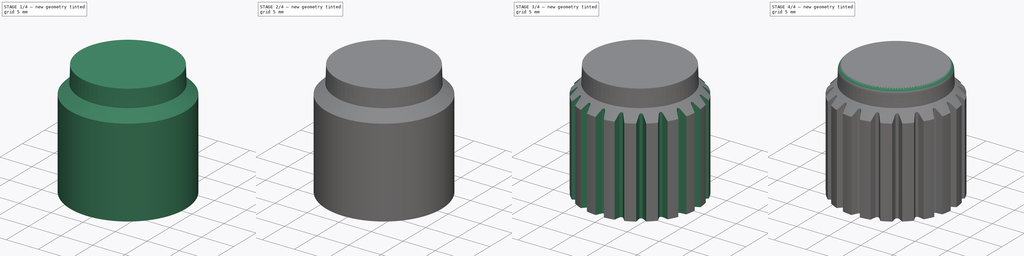
[diagram: build sequence overview — one tinted view per stage of 4, left to right]
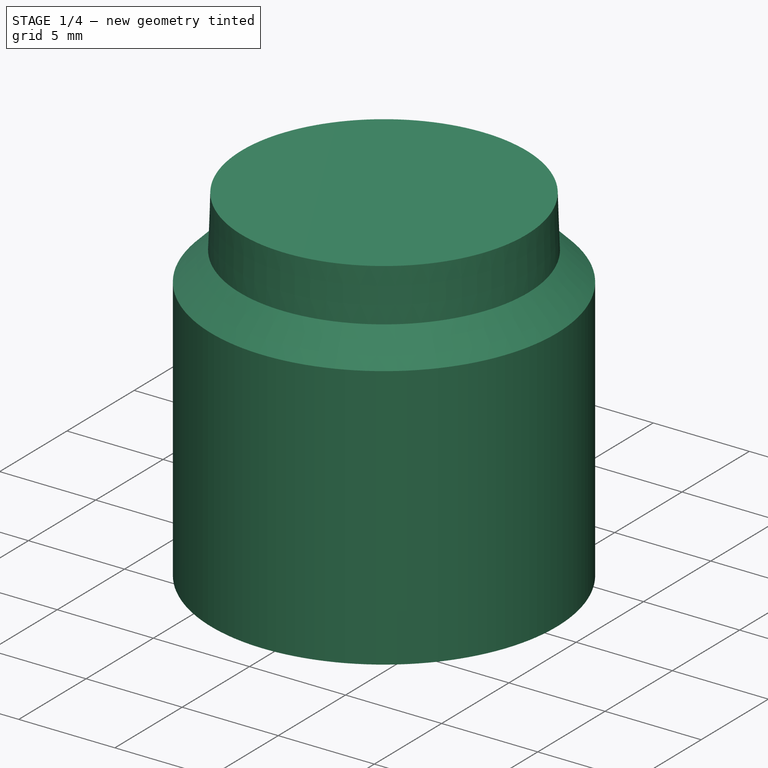
[diagram: stage 1 of 4 — iso view after this stage's code; geometry added in this stage tinted green]
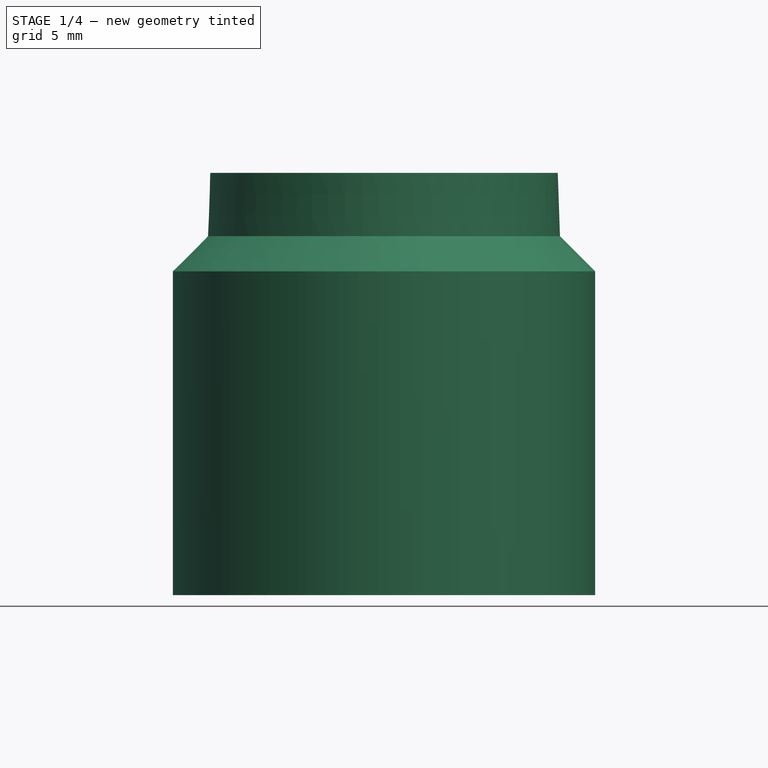
[diagram: stage 1 of 4 — front view after this stage's code; geometry added in this stage tinted green]
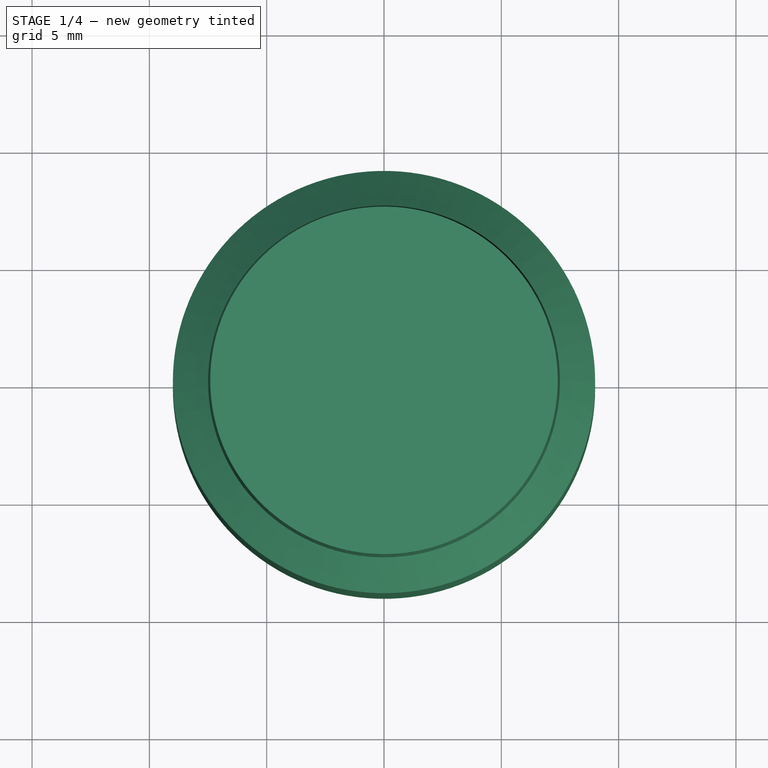
[diagram: stage 1 of 4 — top view after this stage's code; geometry added in this stage tinted green]
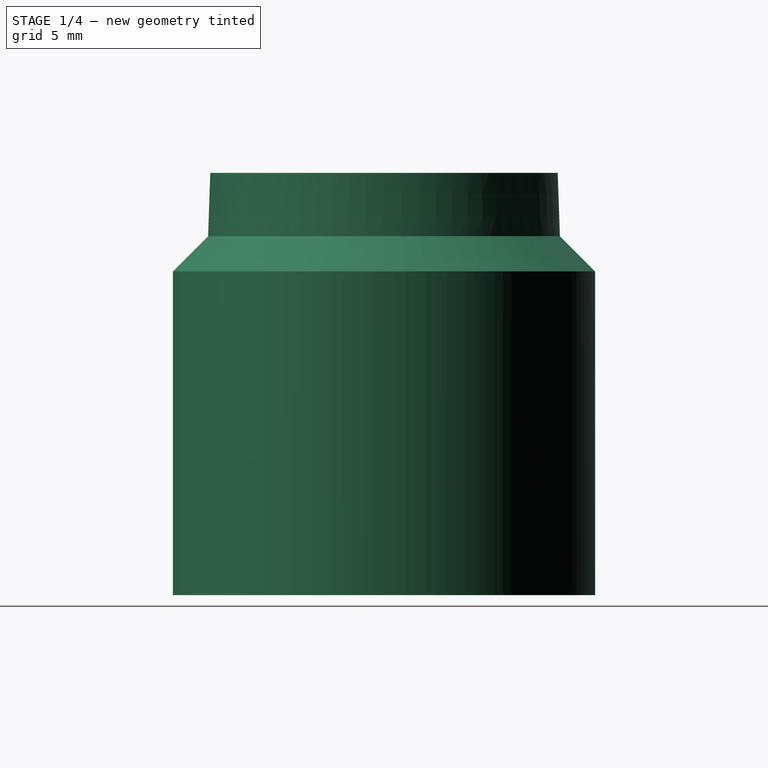
[diagram: stage 1 of 4 — right view after this stage's code; geometry added in this stage tinted green]
FCSTD DOCUMENT  (FreeCAD 2022.709R28846 (Git))
Label: knob_brute
License: All rights reserved
LicenseURL: http://en.wikipedia.org/wiki/All_rights_reserved
objects: Sketcher::SketchObject×6, PartDesign::Pocket×4, PartDesign::Fillet×2, PartDesign::Chamfer×2, PartDesign::Revolution×1, PartDesign::Pad×1, PartDesign::Mirrored×1, PartDesign::PolarPattern×1, PartDesign::Body×1
note: 43 computed .brp shape members not serialized (recipe doc carries the construction recipe); baked Part::Feature solids carry a one-line shape summary decoded from their .brp

FEATURE [Sketcher::SketchObject] Sketch  label="Master Profile Sketch"
  ArcFitTolerance = 0
  AttachmentSupport = -> [XZ_Plane]
  FullyConstrained = true
  MapMode = 5
  Placement = pos=(0,0,0) rot=(1,0,0;1.5708rad)
  Support = -> [XZ_Plane]
  TreeRank = 0
  sketch-geometry (9):
    g0: LineSegment StartX=0 StartY=0 StartZ=0 EndX=0 EndY=18 EndZ=0
    g1: LineSegment StartX=0 StartY=18 StartZ=0 EndX=7.40571 EndY=18 EndZ=0
    g2: LineSegment StartX=7.40571 StartY=18 StartZ=0 EndX=7.5 EndY=15.3 EndZ=0
    g3: LineSegment StartX=7.5 StartY=15.3 StartZ=0 EndX=9 EndY=13.8 EndZ=0
    g4: LineSegment StartX=9 StartY=13.8 StartZ=0 EndX=9 EndY=0 EndZ=0
    g5: LineSegment StartX=9 StartY=0 StartZ=0 EndX=0 EndY=0 EndZ=0
    g6: LineSegment [constr] StartX=7.5 StartY=15.3 StartZ=0 EndX=9 EndY=15.3 EndZ=0
    g7: LineSegment [constr] StartX=9 StartY=13.8 StartZ=0 EndX=9 EndY=15.3 EndZ=0
    g8: LineSegment [constr] StartX=7.5 StartY=15.3 StartZ=0 EndX=7.5 EndY=18 EndZ=0
  constraints (25):
    c: Coincident(g-1,g0)
    c: PointOnObject(g0,g-2)
    c: Coincident(g0,g1)
    c: Horizontal(g1)
    c: Coincident(g1,g2)
    c: Coincident(g2,g3)
    c: Coincident(g3,g4)
    c: PointOnObject(g4,g-1)
    c: Vertical(g4)
    c: Coincident(g4,g5)
    c: Coincident(g5,g0)
    c: DistanceY(g0,g0) = 18
    c: DistanceX(g5,g5) = 9
    c: DistanceY(g2,g2) = 2.7
    c: DistanceX(g3,g3) = 1.5
    c: Coincident(g6,g2)
    c: Horizontal(g6)
    c: Coincident(g7,g3)
    c: Coincident(g7,g6)
    c: Vertical(g7)
    c: Angle(g7,g3) = 0.785398
    c: Coincident(g8,g2)
    c: Vertical(g8)
    c: Horizontal(g1,g8)
    c: Angle(g8,g2) = 0.0349066
FEATURE [PartDesign::Revolution] Revolution
  Angle = 360
  Axis = (0,-2e-16,1)
  Base = (0,0,0)
  ClaimChildren = false
  Fit = 0
  FitJoin = 0
  InnerFit = 0
  InnerFitJoin = 0
  NewSolid = false
  Placement = pos=(0,0,0) rot=(1,0,0;1.5708rad)
  Profile = -> Sketch
  ReferenceAxis = -> Sketch [V_Axis]
  Reversed = true
  Suppress = false
  TreeRank = 0
  _ProfileBasedVersion = 0
FEATURE [Sketcher::SketchObject] Sketch002
  ArcFitTolerance = 0
  AttachmentSupport = -> [XY_Plane]
  ExternalGeometry = -> [Revolution]
  FullyConstrained = true
  MapMode = 5
  Support = -> [XY_Plane]
  TreeRank = 0
  sketch-geometry (3):
    g0: Circle CenterX=0 CenterY=0 CenterZ=0 NormalX=0 NormalY=0 NormalZ=1 AngleXU=0 Radius=6
    g1: GeomPoint [constr] X=0 Y=-9 Z=0
    g2: GeomPoint [constr] X=0 Y=-6 Z=0
  constraints (6):
    c: Coincident(g0,g-1)
    c: PointOnObject(g1,g-3)
    c: Vertical(g1,g-1)
    c: PointOnObject(g2,g0)
    c: Vertical(g2,g-1)
    c: DistanceY(g1,g2) = 3
FEATURE [PartDesign::Pocket] Pocket
  BaseFeature = -> Revolution
  ClaimChildren = false
  Fit = 0
  FitJoin = 0
  InnerFit = 0
  InnerFitJoin = 0
  InnerTaperAngle = 0
  InnerTaperAngleRev = 0
  Length = 16
  Length2 = 5
  NewSolid = false
  Placement = pos=(0,0,0) rot=(1,0,0;1.5708rad)
  Profile = -> Sketch002
  Reversed = true
  Suppress = false
  TreeRank = 0
  Type = 0
  _ProfileBasedVersion = 0
FEATURE [Sketcher::SketchObject] Sketch001
  ArcFitTolerance = 0
  AttachmentOffset = pos=(0,0,16) rot=(0,0,1;0rad)
  AttachmentSupport = -> [XY_Plane]
  ExternalGeometry = -> [Pocket]
  FullyConstrained = true
  MapMode = 5
  Placement = pos=(0,0,16) rot=(0,0,1;0rad)
  Support = -> [XY_Plane]
  TreeRank = 0
  expr: AttachmentOffset.Base.z = Pocket.Length
  sketch-geometry (15):
    g0: ArcOfCircle CenterX=0 CenterY=4e-16 CenterZ=0 NormalX=0 NormalY=0 NormalZ=1 AngleXU=0 Radius=3.15 StartAngle=1.11024 EndAngle=3.14159
    g1: LineSegment [constr] StartX=1.4 StartY=2.82179 StartZ=0 EndX=1.4 EndY=0 EndZ=0
    g2: ArcOfCircle CenterX=4.4 CenterY=4e-16 CenterZ=0 NormalX=0 NormalY=0 NormalZ=1 AngleXU=0 Radius=3 StartAngle=2.56083 EndAngle=3.14159
    g3: ArcOfCircle CenterX=1.26875 CenterY=2.05491 CenterZ=0 NormalX=0 NormalY=0 NormalZ=1 AngleXU=0 Radius=0.745313 StartAngle=5.70242 EndAngle=7.39343
    g4: LineSegment StartX=1.4 StartY=2.82179 StartZ=0 EndX=1.6 EndY=2.72256 EndZ=0
    g5: ArcOfCircle CenterX=4.4 CenterY=4e-16 CenterZ=0 NormalX=0 NormalY=0 NormalZ=1 AngleXU=0 Radius=2.18 StartAngle=2.56083 EndAngle=3.14159
    g6: ArcOfCircle CenterX=1.26875 CenterY=2.05491 CenterZ=0 NormalX=0 NormalY=0 NormalZ=1 AngleXU=0 Radius=1.56531 StartAngle=5.70242 EndAngle=7.39343
    g7: LineSegment StartX=1.4 StartY=4e-16 StartZ=0 EndX=2.22 EndY=4e-16 EndZ=0
    g8: LineSegment [constr] StartX=1.89186 StartY=1.64598 StartZ=0 EndX=2.57742 EndY=1.19608 EndZ=0
    g9: LineSegment [constr] StartX=1.96444 StartY=3.45712 StartZ=0 EndX=1.6 EndY=2.72256 EndZ=0
    g10: Circle [constr] CenterX=0 CenterY=4e-16 CenterZ=0 NormalX=0 NormalY=0 NormalZ=1 AngleXU=0 Radius=3
    g11: GeomPoint [constr] X=-3 Y=4e-16 Z=0
    g12: ArcOfCircle CenterX=2.41444 CenterY=4.36413 CenterZ=0 NormalX=0 NormalY=0 NormalZ=1 AngleXU=0 Radius=1.0125 StartAngle=1.06546 EndAngle=4.25183
    g13: ArcOfCircle CenterX=0 CenterY=4e-16 CenterZ=0 NormalX=0 NormalY=0 NormalZ=1 AngleXU=0 Radius=6 StartAngle=1.06546 EndAngle=3.14159
    g14: LineSegment StartX=-3.15 StartY=4e-16 StartZ=0 EndX=-6 EndY=4e-16 EndZ=0
  constraints (38):
    c: Vertical(g1)
    c: Coincident(g0,g1)
    c: Diameter(g0) = 6.3
    c: Horizontal(g2,g0)
    c: Tangent(g3,g2) = 1.5708
    c: Tangent(g4,g0) = 1.5708
    c: Tangent(g4,g3) = 1.5708
    c: Radius(g2) = 3
    c: Coincident(g6,g5)
    c: PointOnObject(g7,g2)
    c: Horizontal(g7)
    c: Horizontal(g7,g2)
    c: Coincident(g5,g2)
    c: Coincident(g5,g7)
    c: Coincident(g8,g2)
    c: Coincident(g8,g5)
    c: PointOnObject(g2,g8)
    c: Coincident(g3,g6)
    c: Coincident(g9,g6)
    c: Coincident(g9,g3)
    c: PointOnObject(g3,g9)
    c: DistanceX(g7,g7) = 0.82
    c: DistanceX(g0,g3) = 0.2
    c: Coincident(g10,g0)
    c: PointOnObject(g11,g10)
    c: Horizontal(g11,g0)
    c: Diameter(g10) = 6
    c: DistanceX(g11,g0) = 4.4
    c: Tangent(g12,g-3) = -1.5708
    c: Tangent(g12,g6) = 1.5708
    c: Tangent(g1,g2) = -1.5708
    c: Coincident(g13,g12)
    c: Coincident(g0,g13)
    c: Horizontal(g0,g0)
    c: Coincident(g14,g0)
    c: Coincident(g13,g14)
    c: Coincident(g0,g-3)
    c: Horizontal(g14)
FEATURE [PartDesign::Pad] Pad
  BaseFeature = -> Pocket
  ClaimChildren = false
  Direction = (0,0,1)
  Fit = 0
  FitJoin = 0
  InnerFit = 0
  InnerFitJoin = 0
  InnerTaperAngle = 0
  InnerTaperAngleRev = 0
  Length = 13
  Length2 = 10
  NewSolid = false
  Placement = pos=(0,0,0) rot=(1,0,0;1.5708rad)
  Profile = -> Sketch001
  Reversed = true
  Suppress = false
  TreeRank = 0
  Type = 0
  _ProfileBasedVersion = 0
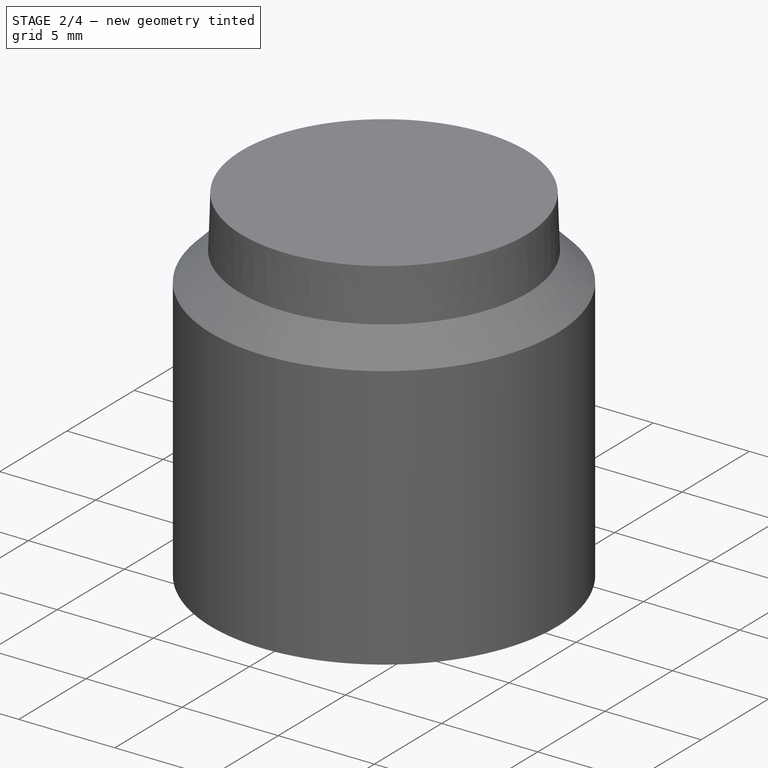
[diagram: stage 2 of 4 — iso view after this stage's code; geometry added in this stage tinted green]
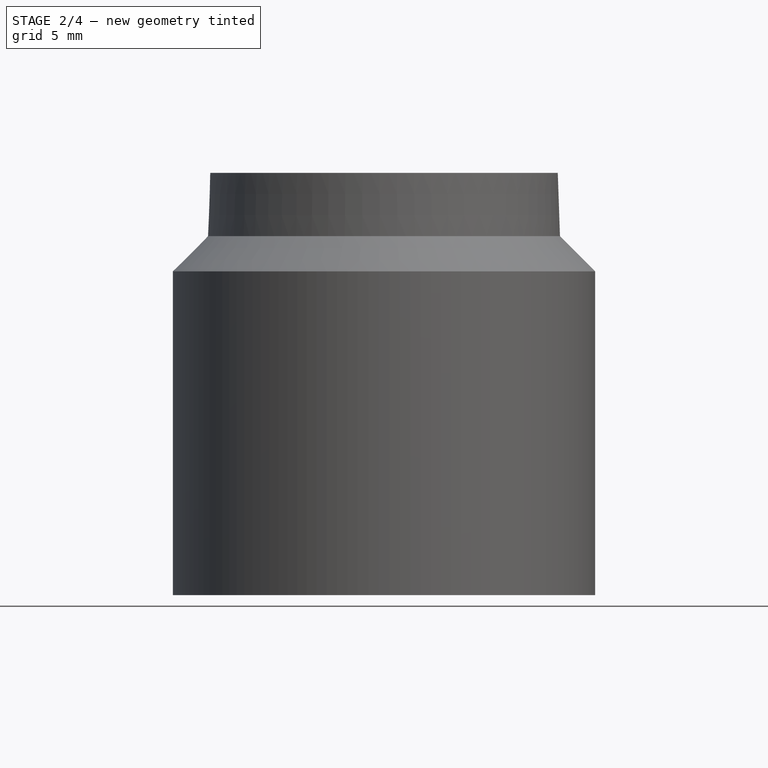
[diagram: stage 2 of 4 — front view after this stage's code; geometry added in this stage tinted green]
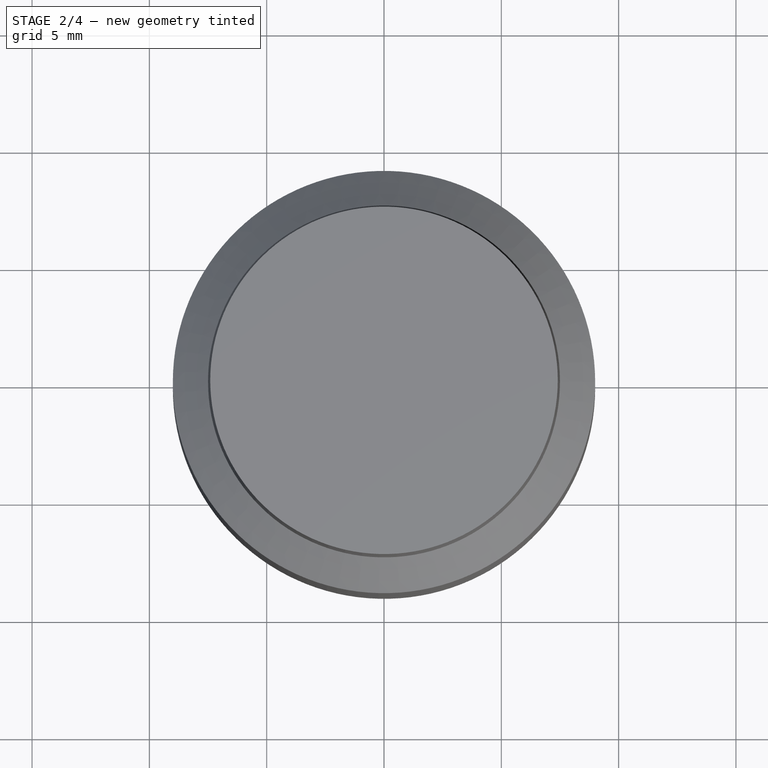
[diagram: stage 2 of 4 — top view after this stage's code; geometry added in this stage tinted green]
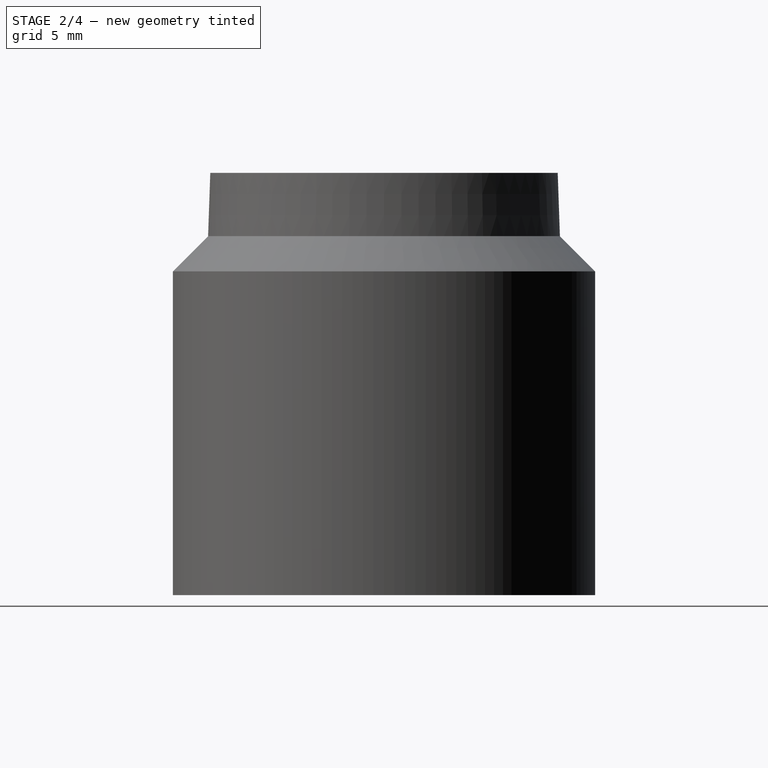
[diagram: stage 2 of 4 — right view after this stage's code; geometry added in this stage tinted green]
FEATURE [PartDesign::Mirrored] Mirrored
  BaseFeature = -> Pad
  CopyShape = true
  MirrorPlane = -> Sketch001 [H_Axis]
  NewSolid = false
  OriginalSubs = -> [Pad]
  Originals = -> [Pad]
  ParallelTransform = true
  Placement = pos=(0,0,0) rot=(1,0,0;1.5708rad)
  SubTransform = true
  Suppress = false
  TreeRank = 0
FEATURE [Sketcher::SketchObject] Sketch003
  ArcFitTolerance = 0
  AttachmentOffset = pos=(0,0,16) rot=(0,0,1;0rad)
  AttachmentSupport = -> [XY_Plane]
  ExternalGeometry = -> [Mirrored]
  FullyConstrained = true
  MapMode = 5
  Placement = pos=(0,0,16) rot=(0,0,1;0rad)
  Support = -> [XY_Plane]
  TreeRank = 0
  expr: AttachmentOffset.Base.z = Pocket.Length
  sketch-geometry (8):
    g0: LineSegment StartX=3.15 StartY=3.45712 StartZ=0 EndX=3.15 EndY=-9e-16 EndZ=0
    g1: LineSegment [constr] StartX=3.15 StartY=-8e-16 StartZ=0 EndX=1.4 EndY=-8e-16 EndZ=0
    g2: LineSegment StartX=1.96444 StartY=3.45712 StartZ=0 EndX=3.15 EndY=3.45712 EndZ=0
    g3: LineSegment StartX=3.15 StartY=-3.45712 StartZ=0 EndX=3.15 EndY=-9e-16 EndZ=0
    g4: LineSegment StartX=1.4 StartY=2.82179 StartZ=0 EndX=1.4 EndY=-2.82179 EndZ=0
    g5: LineSegment StartX=1.96444 StartY=3.45712 StartZ=0 EndX=1.4 EndY=2.82179 EndZ=0
    g6: LineSegment StartX=3.15 StartY=-3.45712 StartZ=0 EndX=1.96444 EndY=-3.45712 EndZ=0
    g7: LineSegment StartX=1.96444 StartY=-3.45712 StartZ=0 EndX=1.4 EndY=-2.82179 EndZ=0
  constraints (21):
    c: Vertical(g0)
    c: Horizontal(g1)
    c: Coincident(g0,g1)
    c: Tangent(g0,g-3)
    c: Coincident(g2,g0)
    c: Horizontal(g2)
    c: Vertical(g3)
    c: Coincident(g0,g3)
    c: Equal(g3,g0)
    c: Vertical(g4)
    c: Symmetric(g4,g4,g1)
    c: Coincident(g1,g-4)
    c: Coincident(g-5,g2)
    c: Coincident(g5,g2)
    c: Coincident(g5,g4)
    c: PointOnObject(g-3,g5)
    c: Coincident(g3,g6)
    c: Coincident(g6,g7)
    c: Coincident(g7,g4)
    c: Vertical(g6,g2)
    c: Horizontal(g6)
FEATURE [PartDesign::Pocket] Pocket001
  BaseFeature = -> Mirrored
  ClaimChildren = false
  Fit = 0
  FitJoin = 0
  InnerFit = 0
  InnerFitJoin = 0
  InnerTaperAngle = 0
  InnerTaperAngleRev = 0
  Length = 0.2
  Length2 = 5
  NewSolid = false
  Placement = pos=(0,0,0) rot=(1,0,0;1.5708rad)
  Profile = -> Sketch003
  Suppress = false
  TreeRank = 0
  Type = 0
  _ProfileBasedVersion = 0
FEATURE [Sketcher::SketchObject] Sketch004
  ArcFitTolerance = 0
  AttachmentOffset = pos=(0,0,3) rot=(0,0,1;0rad)
  AttachmentSupport = -> [XY_Plane]
  ExternalGeometry = -> [Mirrored]
  FullyConstrained = true
  MapMode = 5
  Placement = pos=(0,0,3) rot=(0,0,1;0rad)
  Support = -> [XY_Plane]
  TreeRank = 0
  expr: AttachmentOffset.Base.z = Pocket.Length - Pad.Length
  sketch-geometry (9):
    g0: LineSegment [constr] StartX=2.83406 StartY=-8e-16 StartZ=0 EndX=1.4 EndY=-8e-16 EndZ=0
    g1: LineSegment StartX=2.83406 StartY=-8e-16 StartZ=0 EndX=2.83406 EndY=3.45712 EndZ=0
    g2: LineSegment StartX=1.96444 StartY=3.45712 StartZ=0 EndX=1.4 EndY=2.82179 EndZ=0
    g3: LineSegment StartX=1.4 StartY=2.82179 StartZ=0 EndX=1.4 EndY=-9e-16 EndZ=0
    g4: LineSegment StartX=1.96444 StartY=3.45712 StartZ=0 EndX=2.83406 EndY=3.45712 EndZ=0
    g5: LineSegment StartX=1.4 StartY=-2.82179 StartZ=0 EndX=1.4 EndY=-9e-16 EndZ=0
    g6: LineSegment StartX=1.96444 StartY=-3.45712 StartZ=0 EndX=1.4 EndY=-2.82179 EndZ=0
    g7: LineSegment StartX=1.96444 StartY=-3.45712 StartZ=0 EndX=2.83406 EndY=-3.45712 EndZ=0
    g8: LineSegment StartX=2.83406 StartY=-8e-16 StartZ=0 EndX=2.83406 EndY=-3.45712 EndZ=0
  constraints (23):
    c: Horizontal(g0)
    c: Vertical(g1)
    c: Coincident(g0,g1)
    c: Coincident(g2,g-5)
    c: Coincident(g2,g3)
    c: Coincident(g2,g4)
    c: Horizontal(g4)
    c: Coincident(g1,g4)
    c: Coincident(g0,g3)
    c: Coincident(g0,g-4)
    c: Coincident(g2,g-3)
    c: Tangent(g-7,g1)
    c: Vertical(g8)
    c: Coincident(g6,g5)
    c: Coincident(g6,g7)
    c: Horizontal(g7)
    c: Coincident(g8,g7)
    c: Equal(g8,g1)
    c: Equal(g5,g3)
    c: Coincident(g0,g5)
    c: Coincident(g0,g8)
    c: Vertical(g6,g2)
    c: Vertical(g5)
FEATURE [PartDesign::Pocket] Pocket002
  BaseFeature = -> Pocket001
  ClaimChildren = false
  Fit = 0
  FitJoin = 0
  InnerFit = 0
  InnerFitJoin = 0
  InnerTaperAngle = 0
  InnerTaperAngleRev = 0
  Length = 3
  Length2 = 5
  NewSolid = false
  Placement = pos=(0,0,0) rot=(1,0,0;1.5708rad)
  Profile = -> Sketch004
  Reversed = true
  Suppress = false
  TreeRank = 0
  Type = 0
  _ProfileBasedVersion = 0
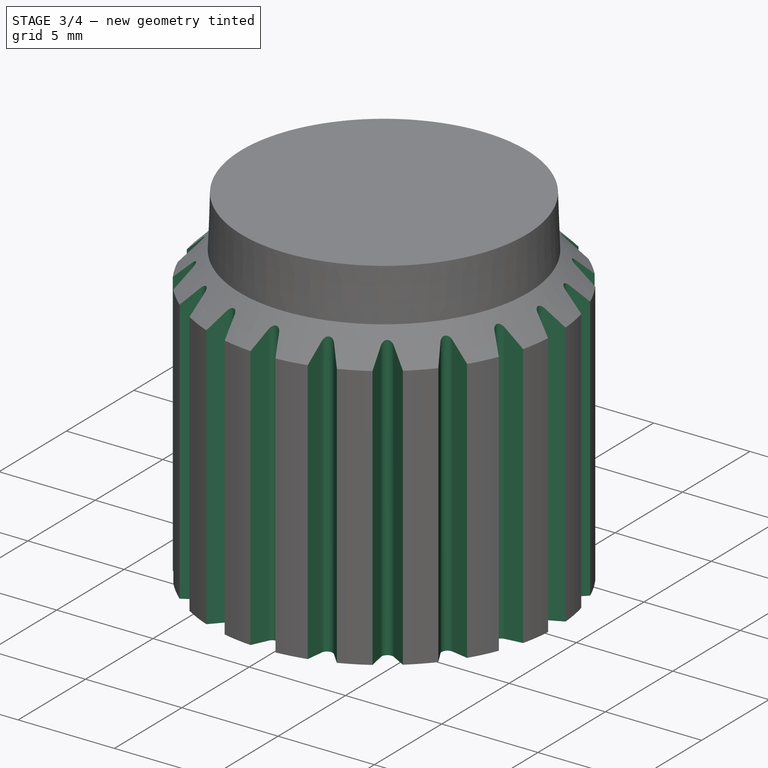
[diagram: stage 3 of 4 — iso view after this stage's code; geometry added in this stage tinted green]
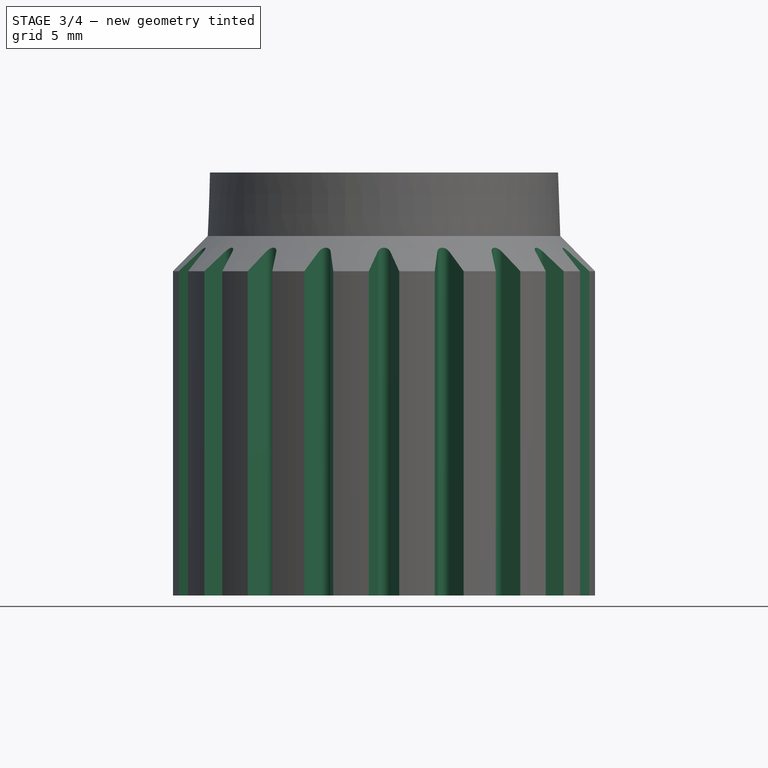
[diagram: stage 3 of 4 — front view after this stage's code; geometry added in this stage tinted green]
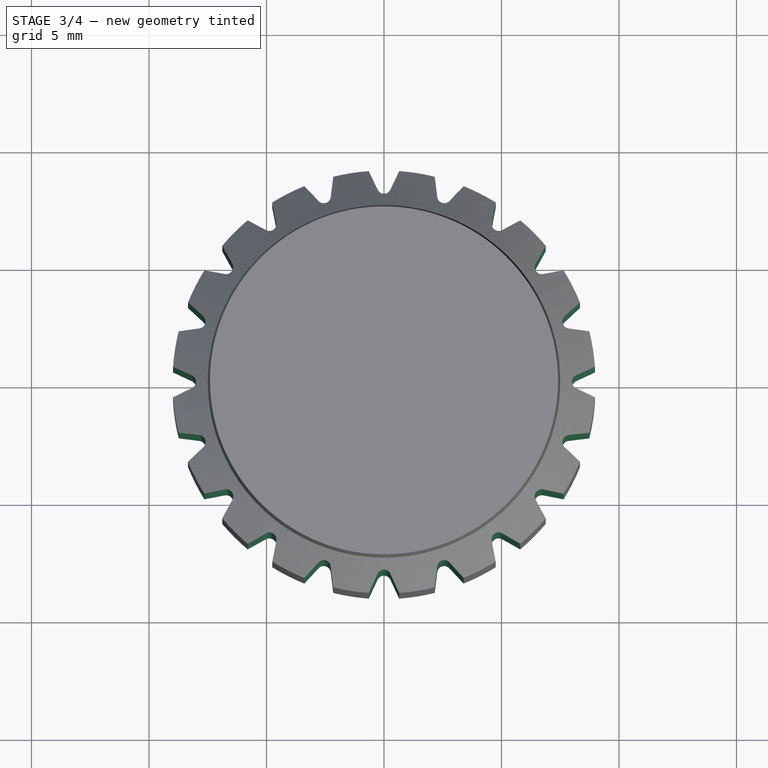
[diagram: stage 3 of 4 — top view after this stage's code; geometry added in this stage tinted green]
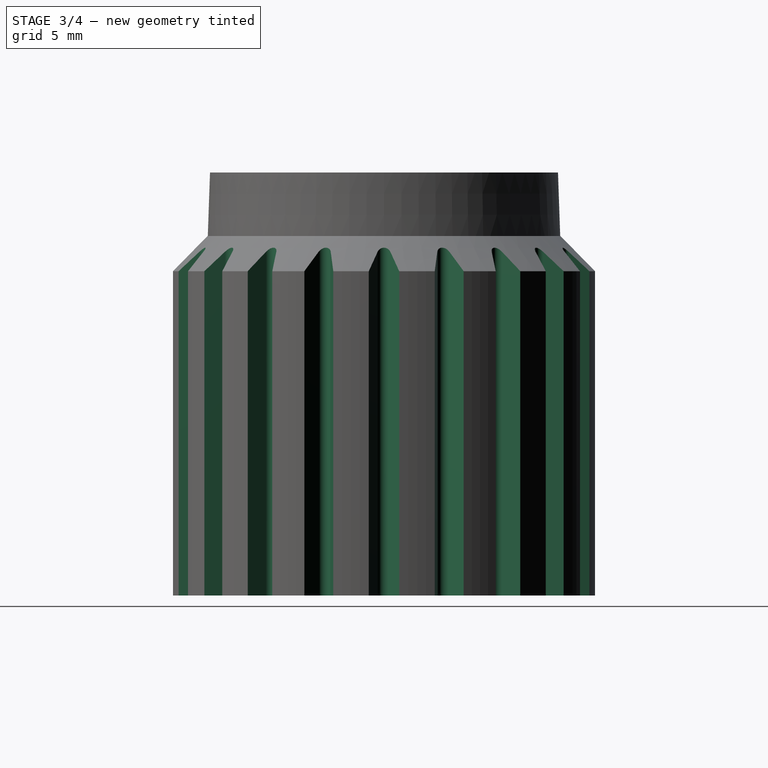
[diagram: stage 3 of 4 — right view after this stage's code; geometry added in this stage tinted green]
FEATURE [PartDesign::Fillet] Fillet
  Base = -> Pocket002 [Edge34,Edge53,Edge46,Edge24]
  BaseFeature = -> Pocket002
  NewSolid = false
  Placement = pos=(0,0,0) rot=(1,0,0;1.5708rad)
  Radius = 0.4
  SupportTransform = false
  Suppress = false
  TreeRank = 0
FEATURE [Sketcher::SketchObject] Sketch005
  ArcFitTolerance = 0
  AttachmentSupport = -> [XY_Plane]
  ExternalGeometry = -> [Pocket001]
  FullyConstrained = true
  MapMode = 5
  Support = -> [XY_Plane]
  TreeRank = 0
  sketch-geometry (5):
    g0: LineSegment [constr] StartX=-5e-16 StartY=9 StartZ=0 EndX=-5e-16 EndY=8.3 EndZ=0
    g1: LineSegment StartX=0.271892 StartY=8.17321 StartZ=0 EndX=0.646584 EndY=8.97674 EndZ=0
    g2: ArcOfCircle CenterX=0 CenterY=-5e-16 CenterZ=0 NormalX=0 NormalY=0 NormalZ=1 AngleXU=0 Radius=9 StartAngle=1.49889 EndAngle=1.6427
    g3: LineSegment StartX=-0.271892 StartY=8.17321 StartZ=0 EndX=-0.646584 EndY=8.97674 EndZ=0
    g4: ArcOfCircle CenterX=-5e-16 CenterY=8.3 CenterZ=0 NormalX=0 NormalY=0 NormalZ=1 AngleXU=0 Radius=0.3 StartAngle=3.57792 EndAngle=5.84685
  constraints (16):
    c: Coincident(g2,g1)
    c: Equal(g1,g3)
    c: Tangent(g1,g4) = -1.5708
    c: Tangent(g3,g4) = 1.5708
    c: Coincident(g0,g4)
    c: Radius(g4) = 0.3
    c: Horizontal(g2,g3)
    c: Angle(g1,g3) = 0.872665
    c: DistanceX(g3,g1) = 1.29317
    c: Coincident(g2,g3)
    c: Vertical(g0)
    c: PointOnObject(g0,g2)
    c: Vertical(g2,g-1)
    c: Equal(g2,g-3)
    c: PointOnObject(g2,g-3)
    c: DistanceY(g0,g0) = 0.7
FEATURE [PartDesign::Pocket] Pocket003
  BaseFeature = -> Fillet
  ClaimChildren = false
  Fit = 0
  FitJoin = 0
  InnerFit = 0
  InnerFitJoin = 0
  InnerTaperAngle = 0
  InnerTaperAngleRev = 0
  Length = 5
  Length2 = 5
  NewSolid = false
  Placement = pos=(0,0,0) rot=(1,0,0;1.5708rad)
  Profile = -> Sketch005
  Reversed = true
  Suppress = false
  TreeRank = 0
  Type = 1
  _ProfileBasedVersion = 0
FEATURE [PartDesign::PolarPattern] PolarPattern
  Angle = 360
  Axis = -> Z_Axis
  BaseFeature = -> Pocket003
  CopyShape = true
  NewSolid = false
  Occurrences = 20
  OriginalSubs = -> [Pocket003]
  Originals = -> [Pocket003]
  ParallelTransform = true
  Placement = pos=(0,0,0) rot=(1,0,0;1.5708rad)
  SubTransform = true
  Suppress = false
  TreeRank = 0
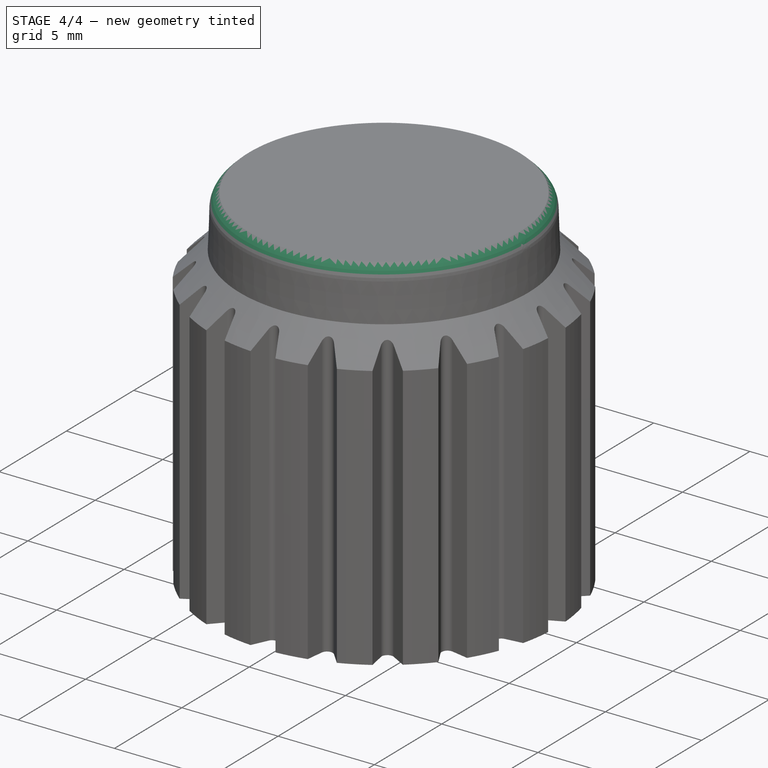
[diagram: stage 4 of 4 — iso view after this stage's code; geometry added in this stage tinted green]
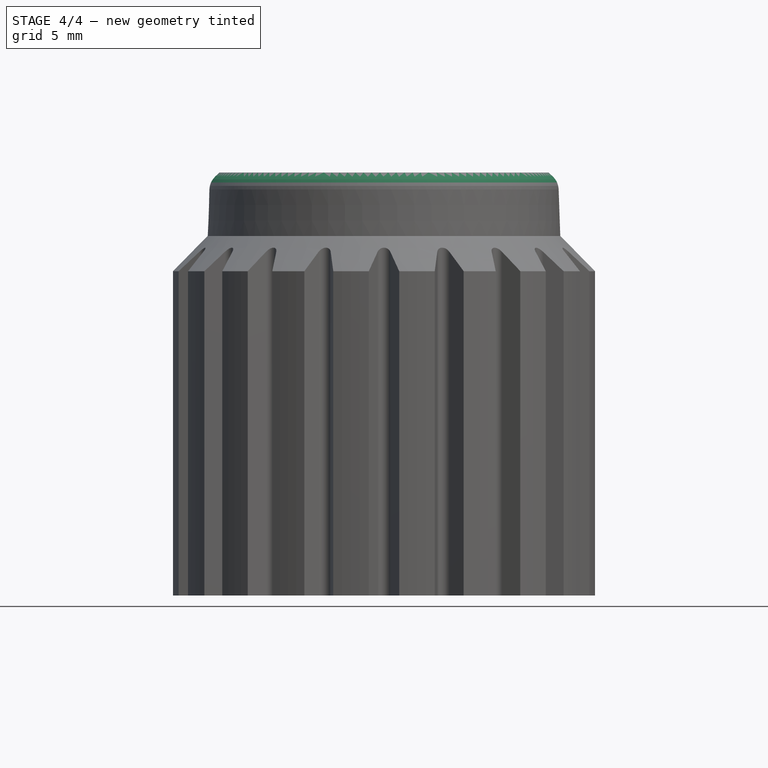
[diagram: stage 4 of 4 — front view after this stage's code; geometry added in this stage tinted green]
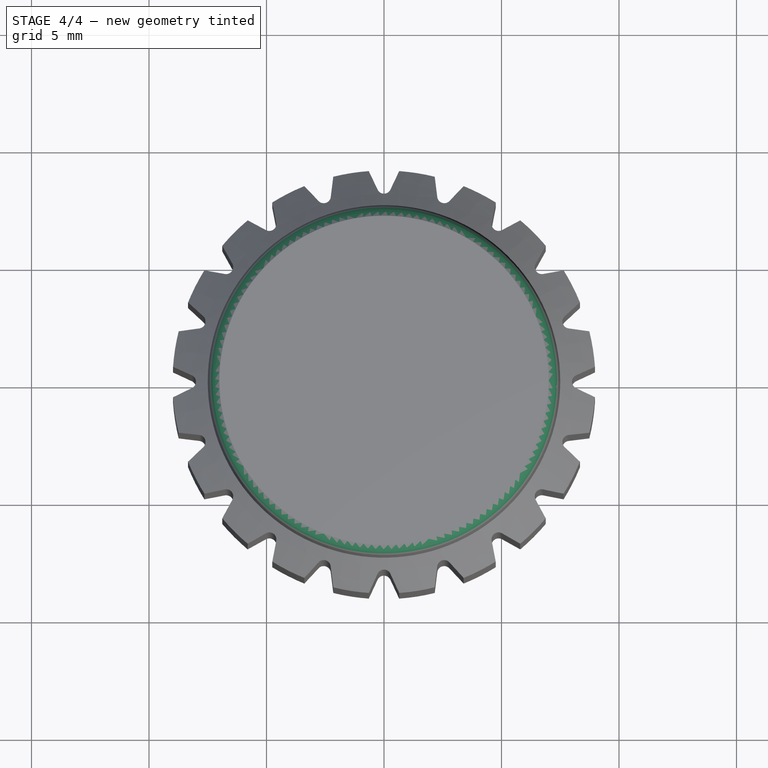
[diagram: stage 4 of 4 — top view after this stage's code; geometry added in this stage tinted green]
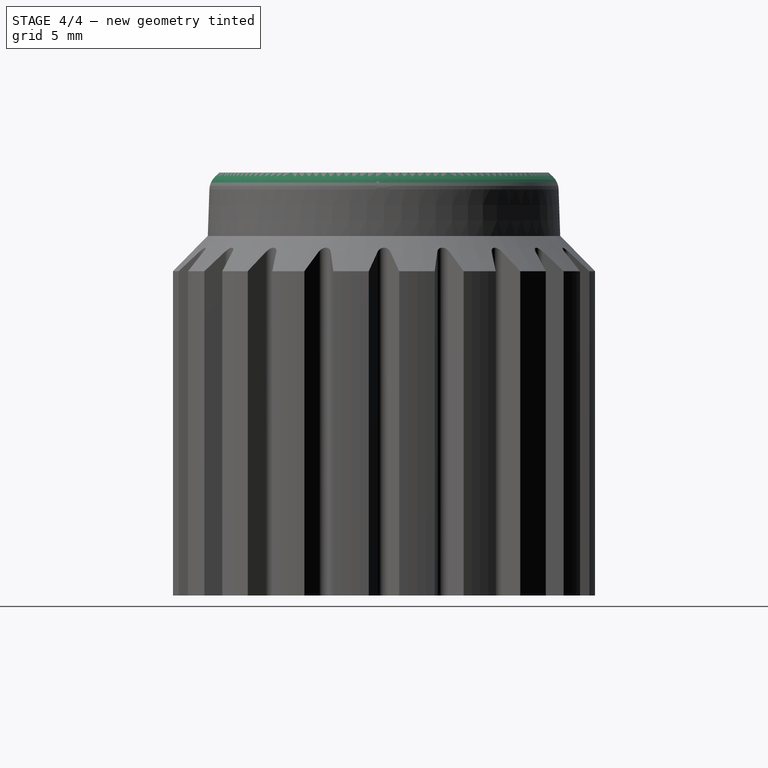
[diagram: stage 4 of 4 — right view after this stage's code; geometry added in this stage tinted green]
FEATURE [PartDesign::Chamfer] Chamfer
  Angle = 45
  Base = -> PolarPattern [Edge344]
  BaseFeature = -> PolarPattern
  ChamferType = 0
  FlipDirection = false
  NewSolid = false
  Placement = pos=(0,0,0) rot=(1,0,0;1.5708rad)
  Size = 0.4
  Size2 = 1
  SupportTransform = false
  Suppress = false
  TreeRank = 0
FEATURE [PartDesign::Fillet] Fillet001
  Base = -> Chamfer [Edge2]
  BaseFeature = -> Chamfer
  NewSolid = false
  Placement = pos=(0,0,0) rot=(1,0,0;1.5708rad)
  Radius = 0.8
  SupportTransform = false
  Suppress = false
  TreeRank = 0
FEATURE [PartDesign::Chamfer] Chamfer001
  Angle = 45
  Base = -> Fillet001 [Edge250]
  BaseFeature = -> Fillet001
  ChamferType = 0
  FlipDirection = false
  NewSolid = false
  Placement = pos=(0,0,0) rot=(1,0,0;1.5708rad)
  Size = 1
  Size2 = 1
  SupportTransform = false
  Suppress = false
  TreeRank = 0
FEATURE [PartDesign::Body] Body  label="knob"
  AutoGroupSolids = false
  ClaimAllChildren = false
  ExportMode = 0
  Group = -> [Sketch,Revolution,Sketch002,Pocket,Sketch001,Pad,Mirrored,Sketch003,Pocket001,Sketch004,Pocket002,Fillet,Sketch005,Pocket003,PolarPattern,Chamfer,Fillet001,Chamfer001]
  Origin = -> Origin
  Tip = -> Chamfer001
  TreeRank = 0
  _ExportChildren = -> [Revolution,Pocket,Pad,Mirrored,Pocket001,Pocket002,Fillet,Pocket003,PolarPattern,Chamfer,Fillet001,Chamfer001]
  _GroupVersion = 1
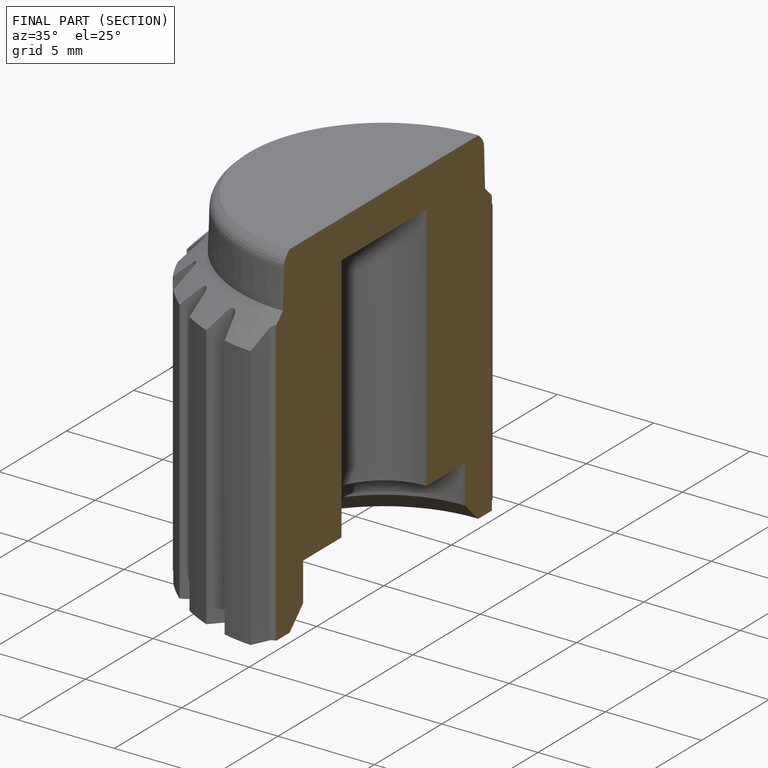
[diagram: finished part — half-section view (interior)]
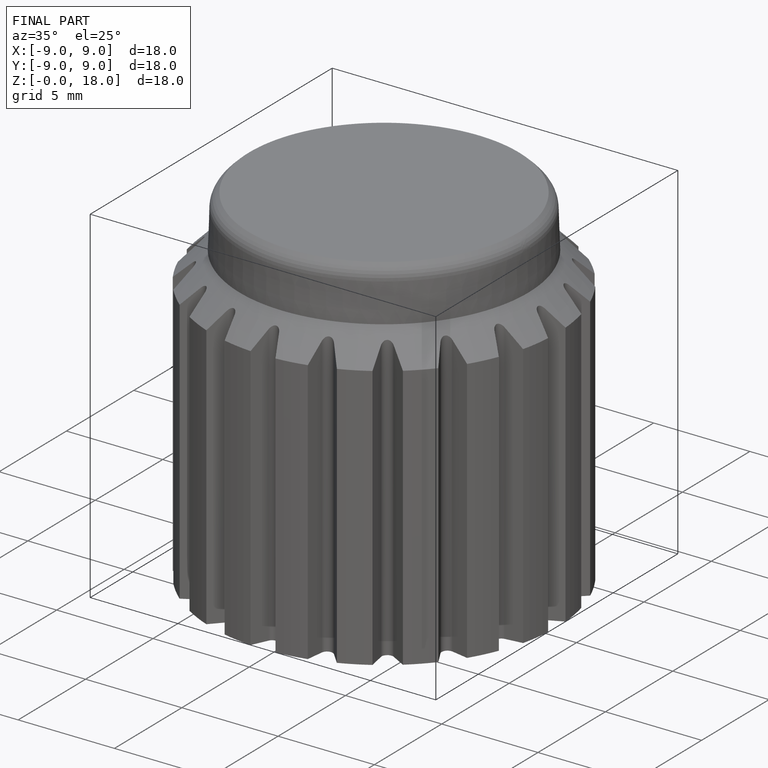
[diagram: finished part — iso view with bounding-box wireframe]
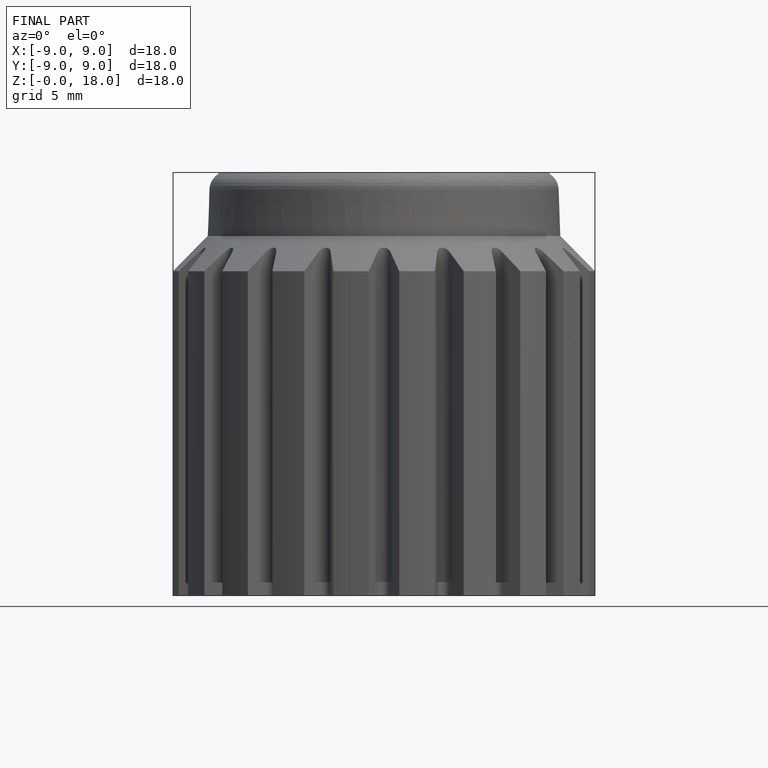
[diagram: finished part — front view with bounding-box wireframe]
